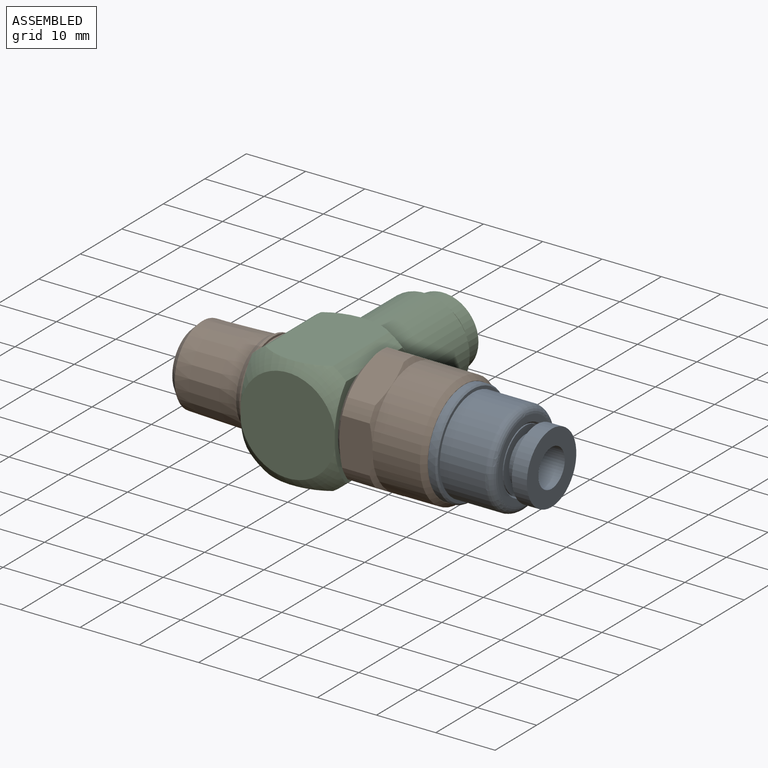
[diagram: assembled view]
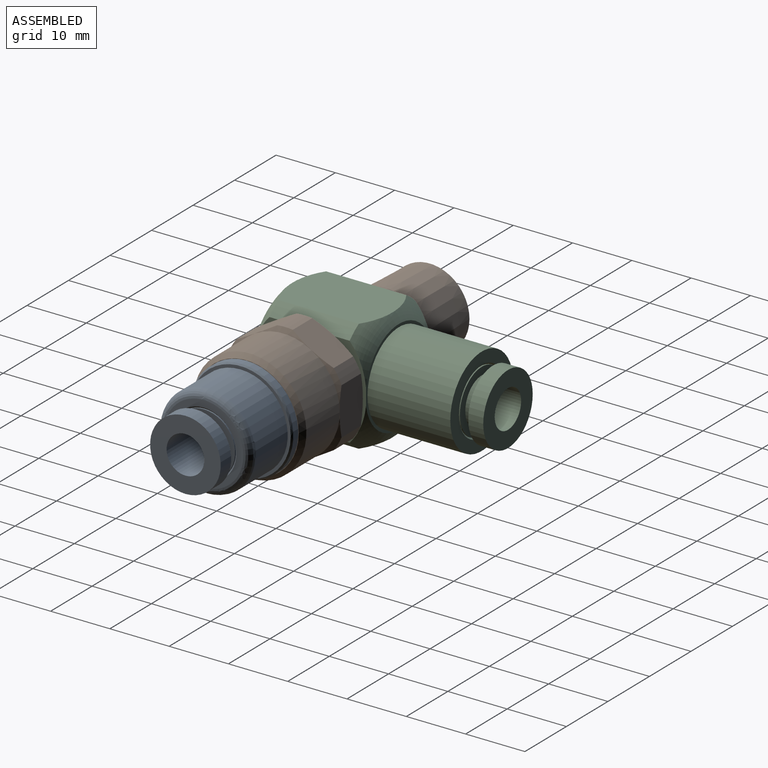
[diagram: assembled view, second angle]
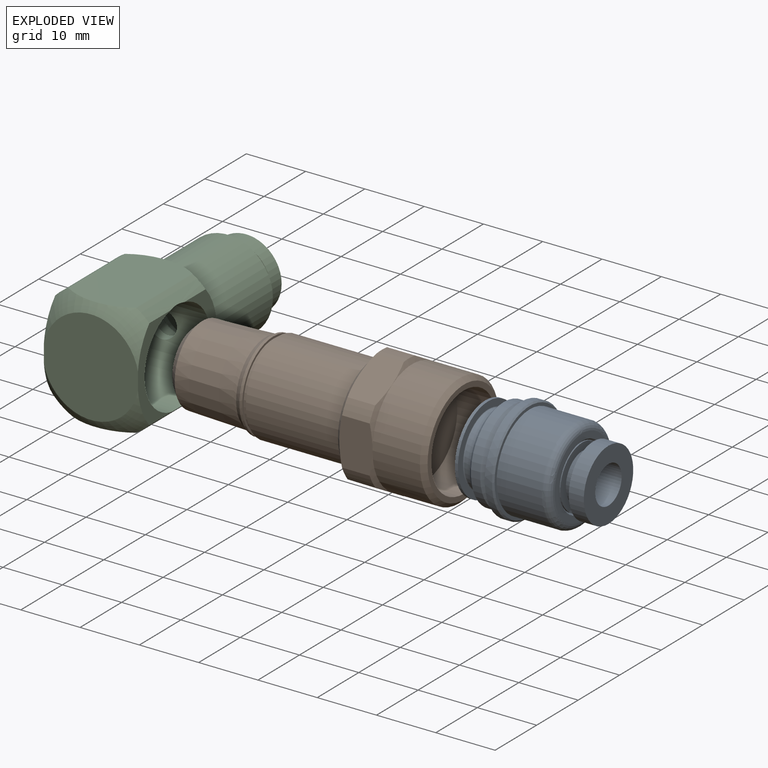
[diagram: exploded view]
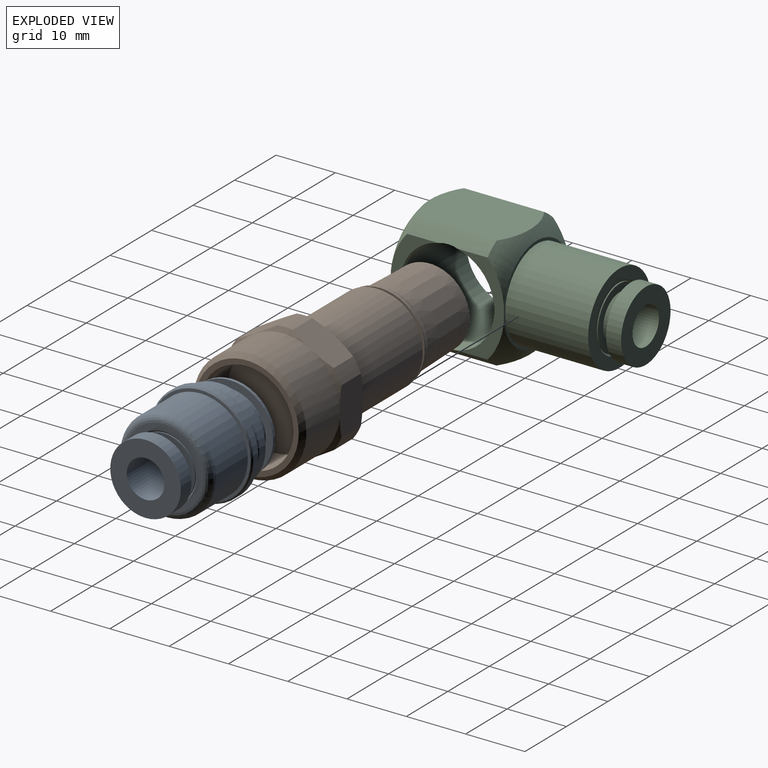
[diagram: exploded view, second angle]
ASSEMBLY  parts=3 mates=2
PART A: 38 faces, bbox 21.4x17.4x17.4 mm
  f0: plane 10.16x10.16mm, normal (-1,0,0), area 64.7mm2, adj f1,f2
  f1: cylinder r=2.29mm len=4.57mm, axis (-1,0,0), area 27.1mm2, adj f0,f3
  f2: cone r=5.86mm half-angle=45deg, axis (-1,0,0), area 37.9mm2, adj f0,f4
  f3: plane 6.55x6.55mm, normal (1,0,0), area 17.3mm2, adj f1,f5
  f4: plane 12.19x12.19mm, normal (-1,0,0), area 8.9mm2, adj f2,f6
  f5: cylinder r=3.28mm len=6.55mm, axis (-1,0,0), area 57.5mm2, adj f3,f7
  f6: cylinder r=6.1mm len=12.19mm, axis (1,0,0), area 24.3mm2, adj f4,f8
  f7: revolved ~7.32x7.32mm, area 12.8mm2, adj f5,f9
  f8: plane 14.61x14.61mm, normal (-1,0,0), area 50.8mm2, adj f6,f10
  f9: plane 9.68x9.68mm, normal (1,0,0), area 31.5mm2, adj f7,f11
  f10: cylinder r=7.3mm len=14.61mm, axis (1,0,0), area 23.3mm2, adj f8,f12
  f11: cylinder r=4.84mm len=9.68mm, axis (-1,0,0), area 66.4mm2, adj f9,f13
  f12: plane 14.61x14.61mm, normal (1,0,0), area 51.1mm2, adj f10,f14
  f13: revolved ~10.49x10.49mm, area 20mm2, adj f11,f15
  f14: revolved ~12.19x12.19mm, area 7.5mm2, adj f12,f16
  f15: plane 10.49x10.49mm, normal (-1,0,0), area 54.6mm2, adj f13,f17
  f16: cylinder r=5.97mm len=11.94mm, axis (1,0,0), area 66.7mm2, adj f14,f18
  f17: cylinder r=3.17mm len=13.01mm, axis (1,0,0), area 259.4mm2, adj f15,f19
  f18: revolved ~12.19x12.19mm, area 7.5mm2, adj f16,f20
  f19: plane 11.91x11.91mm, normal (1,0,0), area 79.8mm2, adj f17,f21
  f20: plane 14.61x14.61mm, normal (-1,0,0), area 51.1mm2, adj f18,f22
  f21: cylinder r=5.96mm len=11.91mm, axis (1,0,0), area 95.1mm2, adj f19,f23
  f22: cone r=7.87mm half-angle=45deg, axis (1,0,0), area 38.5mm2, adj f20,f24
  f23: plane 11.91x11.91mm, normal (-1,0,0), area 62mm2, adj f21,f25
  f24: cylinder r=7.87mm len=15.75mm, axis (-1,0,0), area 76.7mm2, adj f22,f26
  f25: cylinder r=3.97mm len=7.94mm, axis (1,0,0), area 46.9mm2, adj f23,f27
  f26: cone r=7.87mm half-angle=45deg, axis (-1,0,0), area 38.5mm2, adj f24,f28
  f27: plane 10.52x10.52mm, normal (1,0,0), area 37.4mm2, adj f25,f29
  f28: cylinder r=7.3mm len=14.61mm, axis (-1,0,0), area 36.1mm2, adj f26,f30
  f29: cylinder r=5.26mm len=10.52mm, axis (1,0,0), area 8.4mm2, adj f27,f31
  f30: plane 17.4x17.4mm, normal (-1,0,0), area 70.2mm2, adj f28,f32
  f31: cone r=5.51mm half-angle=45deg, axis (1,0,0), area 12.2mm2, adj f29,f33
  f32: cylinder r=8.7mm len=17.4mm, axis (-1,0,0), area 66.6mm2, adj f30,f34
  f33: plane 13.34x13.34mm, normal (1,0,0), area 43.8mm2, adj f31,f35
  f34: cone r=8.7mm half-angle=45deg, axis (-1,0,0), area 19.3mm2, adj f32,f36
  f35: revolved ~15.88x15.88mm, area 93.7mm2, adj f33,f37
  f36: plane 16.89x16.89mm, normal (1,0,0), area 26.1mm2, adj f34,f37
  f37: cylinder r=7.94mm len=15.88mm, axis (1,0,0), area 380mm2, adj f35,f36
PART B: 43 faces, bbox 45.5x20.7x20.7 mm
  f0: plane 8.89x8.89mm, normal (-1,0,0), area 62.1mm2, adj f2
  f1: plane 15.75x15.75mm, normal (1,0,0), area 194.8mm2, adj f3
  f2: cylinder r=4.45mm len=11.43mm, axis (1,0,0), area 319.2mm2, adj f0,f4
  f3: cylinder r=7.87mm len=15.75mm, axis (1,0,0), area 329.2mm2, adj f1,f5
  f4: plane 10.64x10.64mm, normal (-1,0,0), area 26.9mm2, adj f2,f6
  f5: plane 17.53x17.53mm, normal (1,0,0), area 46.5mm2, adj f3,f7
  f6: cone r=6.67mm half-angle=45deg, axis (1,0,0), area 71.7mm2, adj f4,f8
  f7: cone r=9.53mm half-angle=45deg, axis (-1,0,0), area 61.9mm2, adj f5,f9
  f8: cone r=6.98mm half-angle=1.8deg, axis (1,0,0), area 432.6mm2, adj f6,f10
  f9: cylinder r=9.53mm len=19.05mm, axis (1,0,0), area 478.8mm2, adj f7,f11,f12,f13,f14,f15,f16
  f10: cylinder r=6.98mm len=13.96mm, axis (1,0,0), area 22.3mm2, adj f8,f17
  f11: cone r=10.33mm half-angle=60deg, axis (-1,0,0), area 4.7mm2, adj f9,f19,f20,f22
  f12: cone r=10.33mm half-angle=60deg, axis (-1,0,0), area 4.7mm2, adj f9,f21,f22,f24
  f13: cone r=10.33mm half-angle=60deg, axis (-1,0,0), area 4.7mm2, adj f9,f23,f24,f25
  f14: cone r=10.33mm half-angle=60deg, axis (-1,0,0), area 4.7mm2, adj f9,f18,f20,f28
  f15: cone r=10.33mm half-angle=60deg, axis (-1,0,0), area 4.7mm2, adj f9,f25,f26,f29
  f16: cone r=10.33mm half-angle=60deg, axis (-1,0,0), area 4.7mm2, adj f9,f27,f28,f29
  f17: cone r=7.5mm half-angle=30deg, axis (1,0,0), area 47.2mm2, adj f10,f30
  f18: cylinder r=10.33mm len=4.66mm, axis (1,0,0), area 12.3mm2, adj f14,f20,f28,f31
  f19: cylinder r=10.33mm len=4.66mm, axis (1,0,0), area 12.3mm2, adj f11,f20,f22,f32
  f20: plane 6.9x5.59mm, normal (0,0.5,-0.87), area 42mm2, adj f11,f14,f18,f19,f31,f32
  f21: cylinder r=10.33mm len=4.66mm, axis (1,0,0), area 12.3mm2, adj f12,f22,f24,f33
  f22: plane 6.9x5.59mm, normal (0,-0.5,-0.87), area 42mm2, adj f11,f12,f19,f21,f32,f33
  f23: cylinder r=10.33mm len=4.66mm, axis (1,0,0), area 12.3mm2, adj f13,f24,f25,f34
  f24: plane 7.97x5.59mm, normal (0,-1,0), area 42mm2, adj f12,f13,f21,f23,f33,f34
  f25: plane 6.9x5.59mm, normal (0,-0.5,0.87), area 42mm2, adj f13,f15,f23,f26,f34,f35
  f26: cylinder r=10.33mm len=4.66mm, axis (1,0,0), area 12.3mm2, adj f15,f25,f29,f35
  f27: cylinder r=10.33mm len=4.66mm, axis (1,0,0), area 12.3mm2, adj f16,f28,f29,f36
  f28: plane 7.97x5.59mm, normal (0,1,0), area 42mm2, adj f14,f16,f18,f27,f31,f36
  f29: plane 6.9x5.59mm, normal (0,0.5,0.87), area 42mm2, adj f15,f16,f26,f27,f35,f36
  f30: cylinder r=7.5mm len=15mm, axis (1,0,0), area 22.3mm2, adj f17,f37
  f31: cone r=10.33mm half-angle=60deg, axis (1,0,0), area 4.7mm2, adj f18,f20,f28,f38
  f32: cone r=10.33mm half-angle=60deg, axis (1,0,0), area 4.7mm2, adj f19,f20,f22,f38
  f33: cone r=10.33mm half-angle=60deg, axis (1,0,0), area 4.7mm2, adj f21,f22,f24,f38
  f34: cone r=10.33mm half-angle=60deg, axis (1,0,0), area 4.7mm2, adj f23,f24,f25,f38
  f35: cone r=10.33mm half-angle=60deg, axis (1,0,0), area 4.7mm2, adj f25,f26,f29,f38
  f36: cone r=10.33mm half-angle=60deg, axis (1,0,0), area 4.7mm2, adj f27,f28,f29,f38
  f37: plane 15x15mm, normal (1,0,0), area 16.6mm2, adj f30,f39
  f38: cone r=9.53mm half-angle=45deg, axis (1,0,0), area 61.9mm2, adj f31,f32,f33,f34,f35,f36,f40
  f39: cylinder r=7.14mm len=14.28mm, axis (1,0,0), area 35.3mm2, adj f37,f41
  f40: plane 17.53x17.53mm, normal (-1,0,0), area 53.9mm2, adj f38,f42
  f41: plane 15.44x15.44mm, normal (-1,0,0), area 27.2mm2, adj f39,f42
  f42: cylinder r=7.72mm len=16.26mm, axis (1,0,0), area 788.7mm2, adj f40,f41
PART C: 35 faces, bbox 21.9x37.4x22.2 mm
  f0: plane 11.91x11.91mm, normal (0,1,0), area 79.8mm2, adj f1,f2
  f1: cylinder r=5.96mm len=11.91mm, axis (0,1,0), area 95.1mm2, adj f0,f3
  f2: cylinder r=3.17mm len=13mm, axis (0,1,0), area 259.4mm2, adj f0,f4
  f3: plane 11.91x11.91mm, normal (0,-1,0), area 62mm2, adj f1,f5
  f4: plane 10.49x10.49mm, normal (0,-1,0), area 54.5mm2, adj f2,f6
  f5: cylinder r=3.97mm len=7.94mm, axis (0,1,0), area 46.9mm2, adj f3,f7
  f6: revolved ~10.49x10.49mm, area 20mm2, adj f4,f8
  f7: plane 10.52x10.52mm, normal (0,1,0), area 37.4mm2, adj f5,f9
  f8: cylinder r=4.84mm len=9.68mm, axis (0,-1,0), area 66.4mm2, adj f6,f10
  f9: cylinder r=5.26mm len=10.52mm, axis (0,1,0), area 8.4mm2, adj f7,f11
  f10: plane 9.68x9.68mm, normal (0,1,0), area 31.5mm2, adj f8,f12
  f11: cone r=5.51mm half-angle=45deg, axis (0,1,0), area 12.2mm2, adj f9,f13
  f12: revolved ~7.32x7.32mm, area 12.8mm2, adj f10,f14
  f13: plane 15.16x15.16mm, normal (0,1,0), area 85.2mm2, adj f11,f15
  f14: cylinder r=3.28mm len=6.55mm, axis (0,-1,0), area 57.5mm2, adj f12,f17
  f15: cylinder r=7.58mm len=15.16mm, axis (0,-1,0), area 665.5mm2, adj f13,f19
  f16: plane 16.91x11.45mm, normal (0,0,1), area 181.4mm2, adj f18,f24,f25,f26
  f17: plane 6.55x6.55mm, normal (0,1,0), area 17.3mm2, adj f14,f30
  f18: revolved ~21.88x9.7mm, area 60mm2, adj f16,f19,f25,f26,f29,f31
  f19: plane 16.12x15.88mm, normal (0,1,0), area 23.1mm2, adj f15,f18,f21,f29,f31
  f20: plane 16.91x11.45mm, normal (0,0,-1), area 181.4mm2, adj f21,f22,f28,f32
  f21: revolved ~21.88x9.7mm, area 60mm2, adj f19,f20,f28,f29,f31,f32
  f22: revolved ~21.88x9.69mm, area 59.9mm2, adj f20,f23,f27,f28,f32,f33
  f23: plane 16.13x15.88mm, normal (0,-1,0), area 203.8mm2, adj f22,f24,f27,f33
  f24: revolved ~21.88x9.69mm, area 59.9mm2, adj f16,f23,f25,f26,f27,f33
  f25: cylinder r=11.11mm len=13.53mm, axis (0,-1,0), area 37.8mm2, adj f16,f18,f24,f31,f33,f34
  f26: cylinder r=11.11mm len=13.53mm, axis (0,-1,0), area 37.8mm2, adj f16,f18,f24,f27,f29,f34
  f27: plane 15.55x7.94mm, normal (-1,0,0), area 37.2mm2, adj f22,f23,f24,f26,f28,f34
  f28: cylinder r=11.11mm len=13.53mm, axis (0,-1,0), area 37.8mm2, adj f20,f21,f22,f27,f29,f34
  f29: plane 15.55x7.94mm, normal (-1,0,0), area 37.1mm2, adj f18,f19,f21,f26,f28,f34
  f30: cylinder r=2.29mm len=4.57mm, axis (0,-1,0), area 17.3mm2, adj f17,f34
  f31: plane 15.55x7.94mm, normal (1,0,0), area 37.1mm2, adj f18,f19,f21,f25,f32,f34
  f32: cylinder r=11.11mm len=13.53mm, axis (0,-1,0), area 37.8mm2, adj f20,f21,f22,f31,f33,f34
  f33: plane 15.55x7.94mm, normal (1,0,0), area 37.2mm2, adj f22,f23,f24,f25,f32,f34
  f34: cylinder r=7.94mm len=15.88mm, axis (1,0,0), area 775.1mm2, adj f25,f26,f27,f28,f29,f30,f31,f32
PLACE A at identity fixed
PLACE B at identity
PLACE C t=(0.38,0,0)mm
MATE fastened B.f9 <-> C.f34  axis (1,0,0) through (7.62,0,0)mm
MATE fastened B.f2 <-> A.f1  axis (1,0,0) through (22.73,0,0)mm
